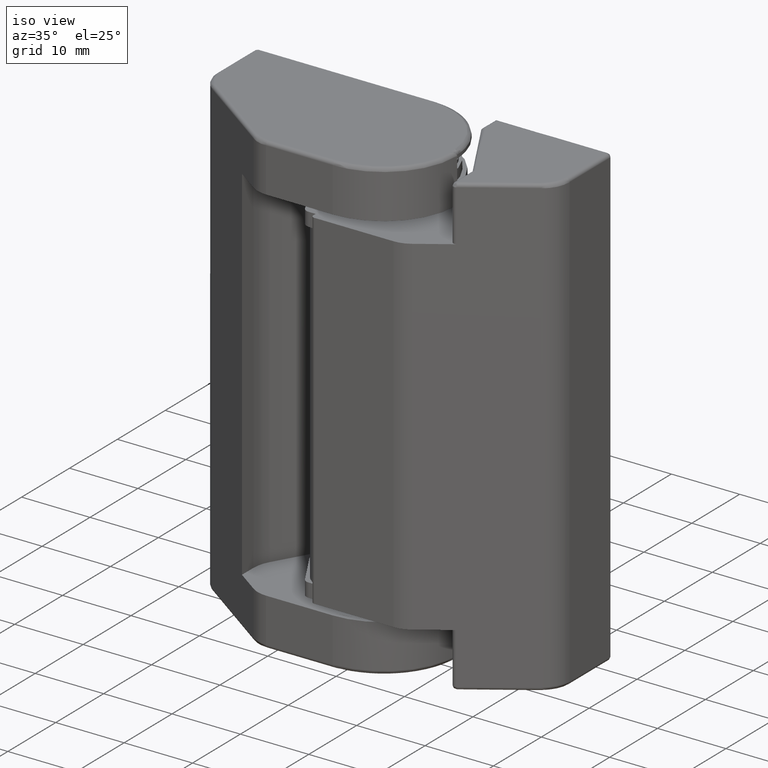
[diagram: clean part render]
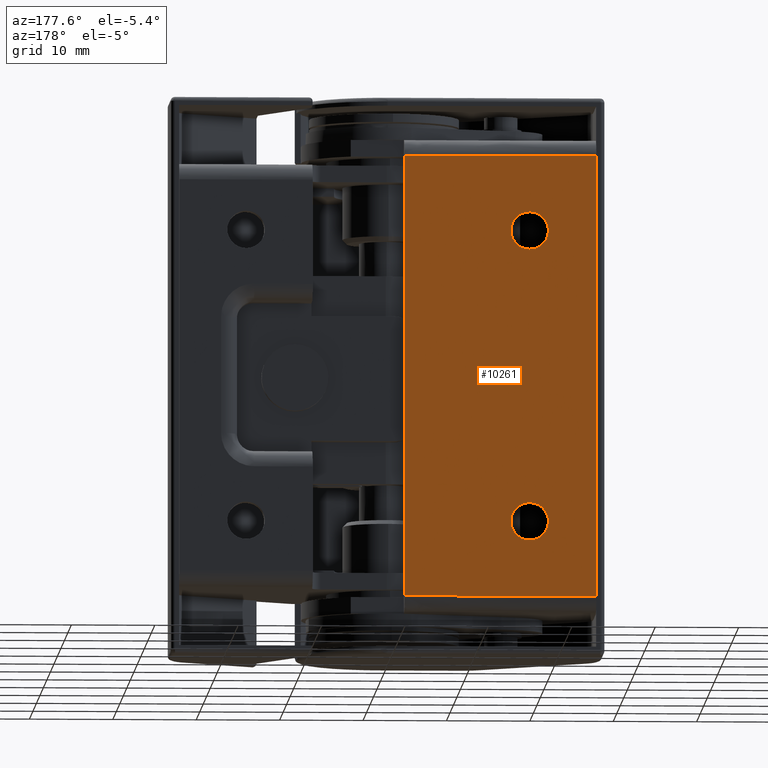
[diagram: tour spotlight — one face highlighted and labeled with its STEP entity id]
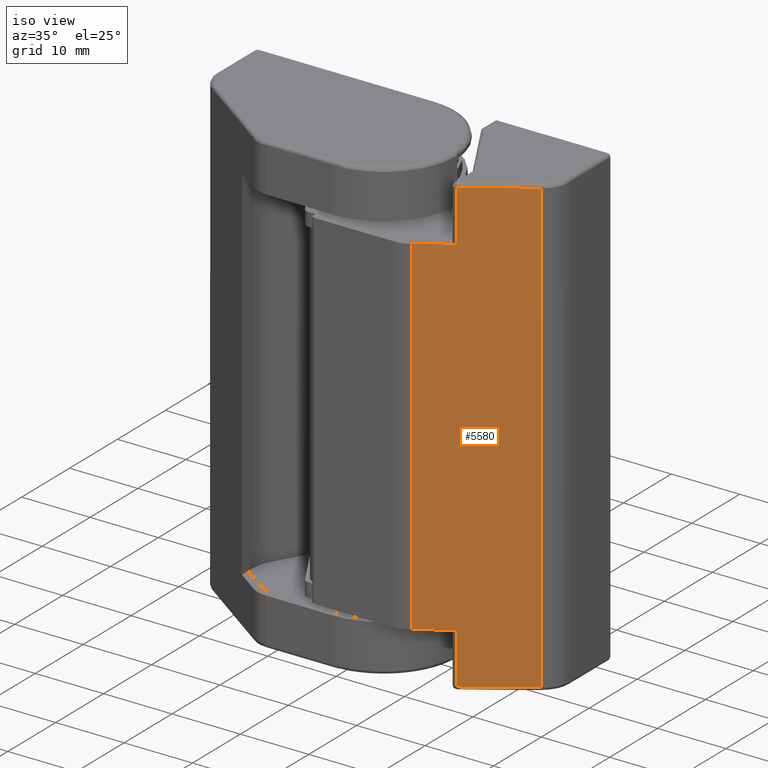
[diagram: tour spotlight — one face highlighted and labeled with its STEP entity id]
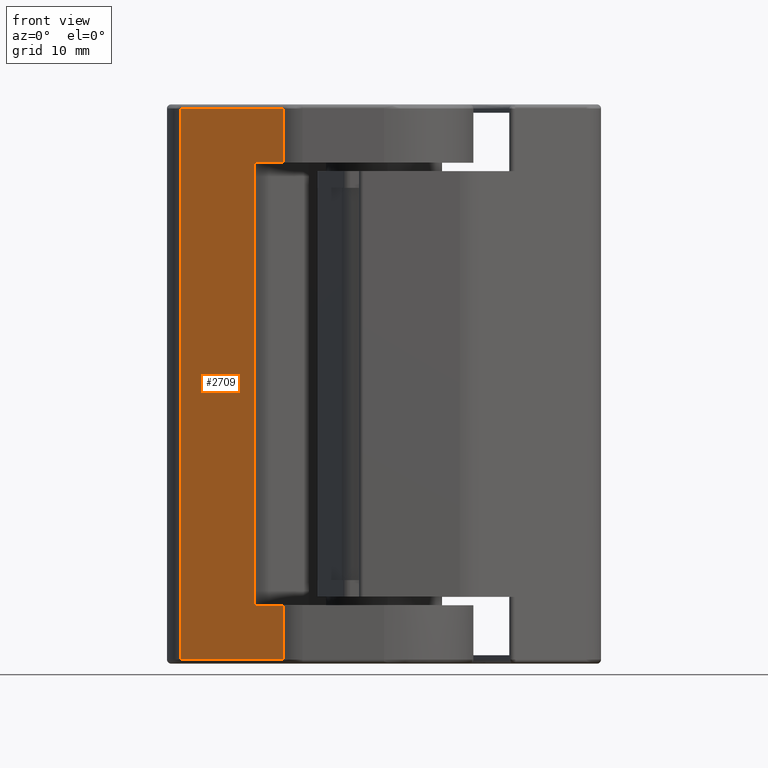
[diagram: tour spotlight — one face highlighted and labeled with its STEP entity id]
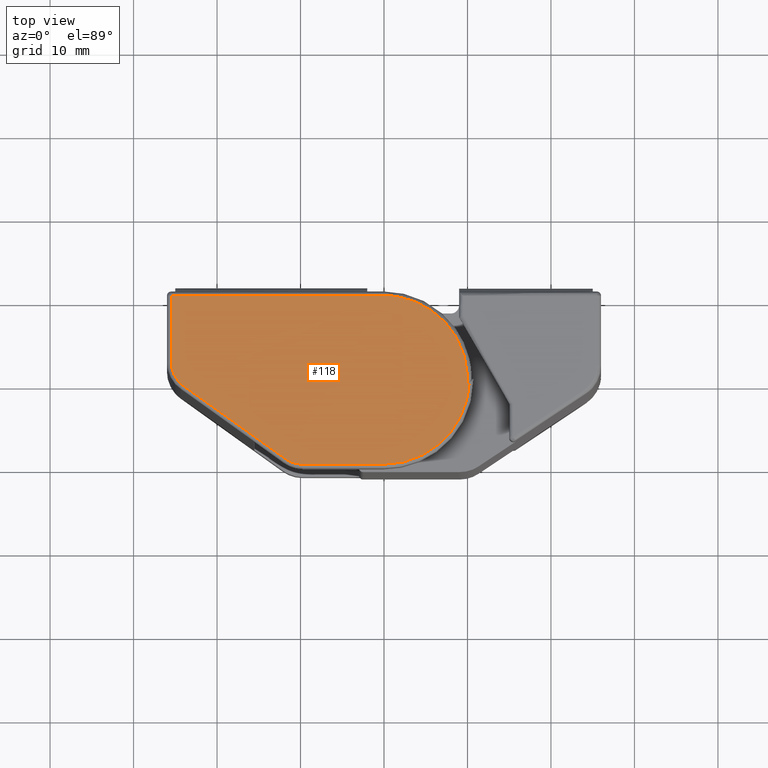
[diagram: tour spotlight — one face highlighted and labeled with its STEP entity id]
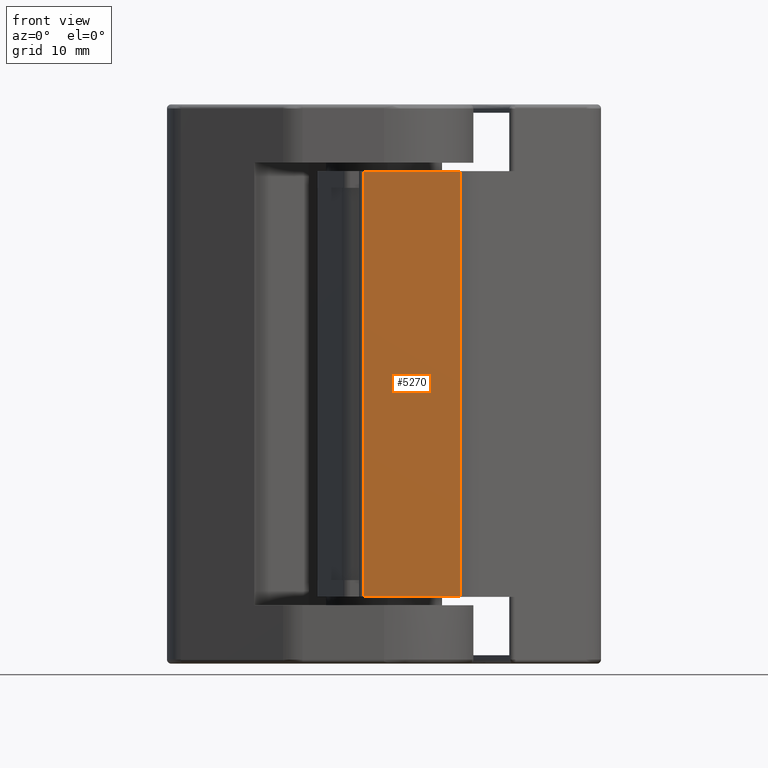
[diagram: tour spotlight — one face highlighted and labeled with its STEP entity id]
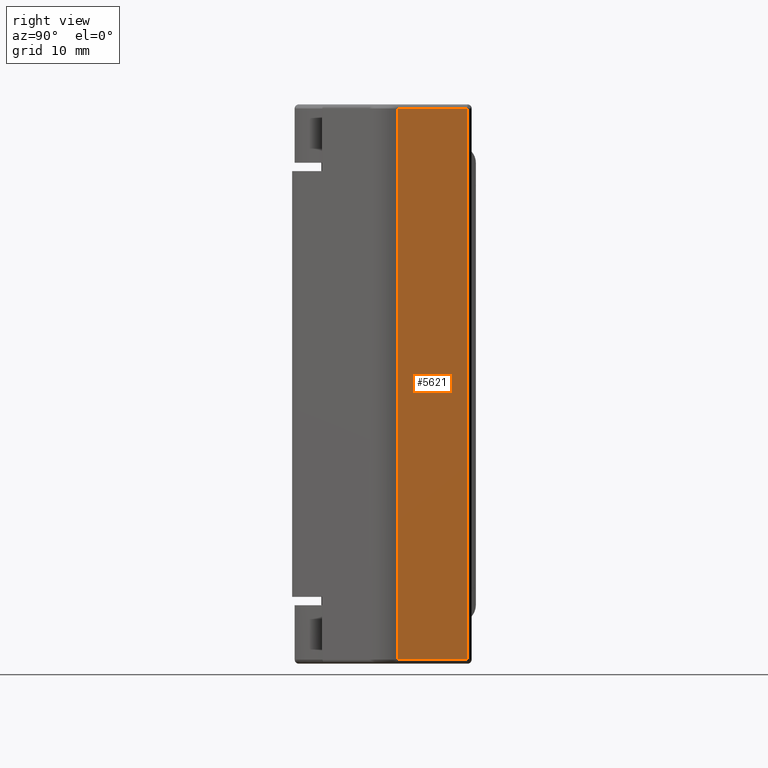
[diagram: tour spotlight — one face highlighted and labeled with its STEP entity id]
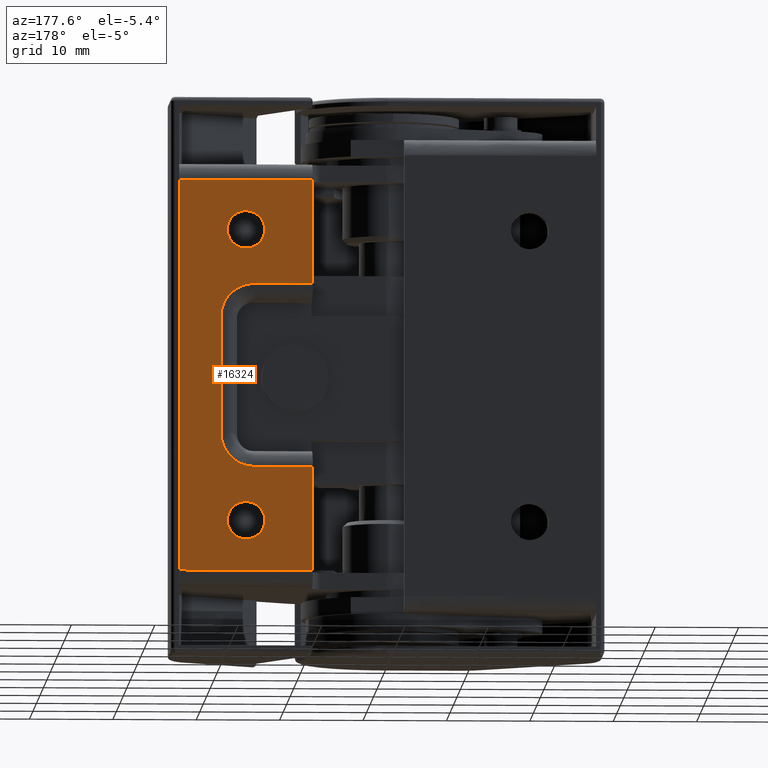
[diagram: tour spotlight — one face highlighted and labeled with its STEP entity id]
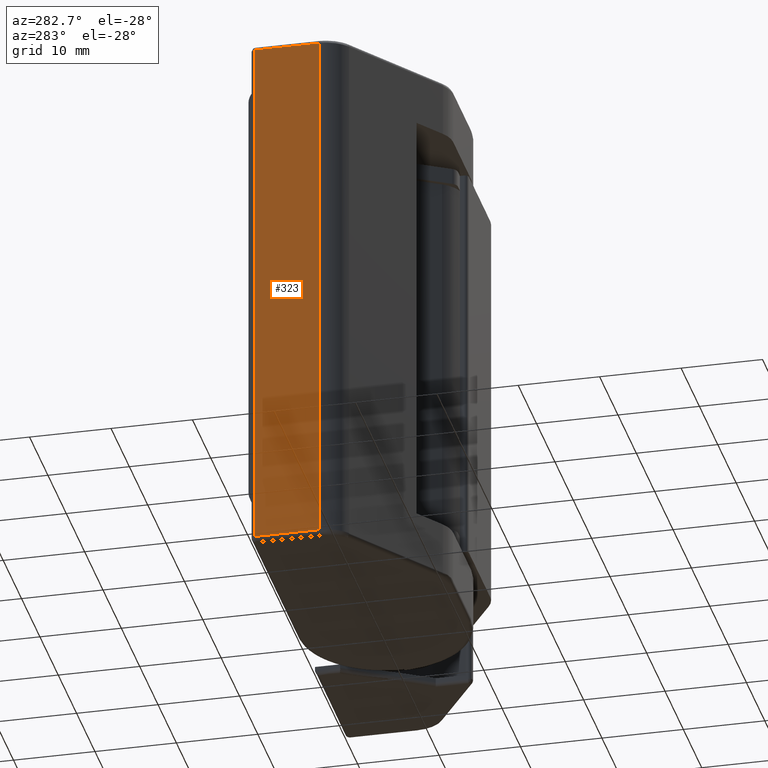
[diagram: tour spotlight — one face highlighted and labeled with its STEP entity id]
A machine part: a face-by-face anatomy tour. The part has 334 B-rep faces; the first image is the clean iso view, then the 8 largest visible faces are spotlighted one at a time (largest first), each with its STEP entity span.

Face 1 — auxiliary view, entity #10261. In plain terms, the highlighted face is a freeform B-spline surface patch.
Definition (entity closure, byte-faithful):
#7795=CARTESIAN_POINT('',(-18.490893221415600,10.999999999998350,52.685152041309820));
#7796=VERTEX_POINT('',#7795);
#7797=CARTESIAN_POINT('',(-17.0,10.999999999998460,48.749999999999993));
#7798=VERTEX_POINT('',#7797);
#7799=CARTESIAN_POINT('',(-18.490893221415600,10.999999999998352,52.685152041309820));
#7800=CARTESIAN_POINT('',(-19.249999999999140,10.999999999998360,52.013552611242424));
#7801=CARTESIAN_POINT('',(-19.249999999999350,10.999999999998391,50.999999999999268));
#7802=CARTESIAN_POINT('',(-19.249999999999819,10.999999999998439,48.749999999999787));
#7803=CARTESIAN_POINT('',(-17.0,10.999999999998460,48.749999999999993));
#7811=(BOUNDED_CURVE()B_SPLINE_CURVE(2,(#7799,#7800,#7801,#7802,#7803),.UNSPECIFIED.,.F.,.U.)B_SPLINE_CURVE_WITH_KNOTS((3,2,3),(0.115779718933797,0.250000000000000,0.500000000000000),.UNSPECIFIED.)CURVE()GEOMETRIC_REPRESENTATION_ITEM()RATIONAL_B_SPLINE_CURVE((0.854350187455677,0.842751159393894,1.0,0.707106781186547,1.0))REPRESENTATION_ITEM(''));
#7812=EDGE_CURVE('',#7796,#7798,#7811,.T.);
#7853=CARTESIAN_POINT('',(-15.509106778584400,10.999999999998350,49.314847958690180));
#7854=VERTEX_POINT('',#7853);
#7860=CARTESIAN_POINT('',(-17.0,10.999999999998460,48.749999999999993));
#7861=CARTESIAN_POINT('',(-16.147552696066118,10.999999999998407,48.750000000000519));
#7862=CARTESIAN_POINT('',(-15.509106778584401,10.999999999998348,49.314847958690173));
#7870=(BOUNDED_CURVE()B_SPLINE_CURVE(2,(#7860,#7861,#7862),.UNSPECIFIED.,.F.,.U.)B_SPLINE_CURVE_WITH_KNOTS((3,3),(0.500000000000000,0.615779718933798),.UNSPECIFIED.)CURVE()GEOMETRIC_REPRESENTATION_ITEM()RATIONAL_B_SPLINE_CURVE((1.0,0.864355621792652,0.854350187455677))REPRESENTATION_ITEM(''));
#7871=EDGE_CURVE('',#7798,#7854,#7870,.T.);
#7894=CARTESIAN_POINT('',(-17.0,10.999999999998460,53.250000000000000));
#7895=VERTEX_POINT('',#7894);
#7896=CARTESIAN_POINT('',(-17.0,10.999999999998460,53.250000000000000));
#7897=CARTESIAN_POINT('',(-17.852447303933879,10.999999999998407,53.249999999999467));
#7898=CARTESIAN_POINT('',(-18.490893221415600,10.999999999998352,52.685152041309820));
#7906=(BOUNDED_CURVE()B_SPLINE_CURVE(2,(#7896,#7897,#7898),.UNSPECIFIED.,.F.,.U.)B_SPLINE_CURVE_WITH_KNOTS((3,3),(0.0,0.115779718933797),.UNSPECIFIED.)CURVE()GEOMETRIC_REPRESENTATION_ITEM()RATIONAL_B_SPLINE_CURVE((1.0,0.864355621792653,0.854350187455677))REPRESENTATION_ITEM(''));
#7907=EDGE_CURVE('',#7895,#7796,#7906,.T.);
#7909=CARTESIAN_POINT('',(-15.509106778584401,10.999999999998348,49.314847958690173));
#7910=CARTESIAN_POINT('',(-14.750000000000858,10.999999999998357,49.986447388757576));
#7911=CARTESIAN_POINT('',(-14.750000000000650,10.999999999998380,51.000000000000732));
#7912=CARTESIAN_POINT('',(-14.750000000000176,10.999999999998439,53.250000000000213));
#7913=CARTESIAN_POINT('',(-17.0,10.999999999998460,53.250000000000000));
#7921=(BOUNDED_CURVE()B_SPLINE_CURVE(2,(#7909,#7910,#7911,#7912,#7913),.UNSPECIFIED.,.F.,.U.)B_SPLINE_CURVE_WITH_KNOTS((3,2,3),(0.615779718933798,0.750000000000000,1.0),.UNSPECIFIED.)CURVE()GEOMETRIC_REPRESENTATION_ITEM()RATIONAL_B_SPLINE_CURVE((0.854350187455677,0.842751159393895,1.0,0.707106781186547,1.0))REPRESENTATION_ITEM(''));
#7922=EDGE_CURVE('',#7854,#7895,#7921,.T.);
#7977=CARTESIAN_POINT('',(-18.490893221415600,10.999999999998350,17.685152041309831));
#7978=VERTEX_POINT('',#7977);
#7979=CARTESIAN_POINT('',(-17.0,10.999999999998460,13.750000000000000));
#7980=VERTEX_POINT('',#7979);
#7981=CARTESIAN_POINT('',(-18.490893221415597,10.999999999998352,17.685152041309831));
#7982=CARTESIAN_POINT('',(-19.249999999999137,10.999999999998362,17.013552611242442));
#7983=CARTESIAN_POINT('',(-19.249999999999361,10.999999999998391,15.999999999999270));
#7984=CARTESIAN_POINT('',(-19.249999999999819,10.999999999998439,13.749999999999797));
#7985=CARTESIAN_POINT('',(-17.0,10.999999999998460,13.750000000000000));
#7993=(BOUNDED_CURVE()B_SPLINE_CURVE(2,(#7981,#7982,#7983,#7984,#7985),.UNSPECIFIED.,.F.,.U.)B_SPLINE_CURVE_WITH_KNOTS((3,2,3),(0.115779718933797,0.250000000000000,0.500000000000000),.UNSPECIFIED.)CURVE()GEOMETRIC_REPRESENTATION_ITEM()RATIONAL_B_SPLINE_CURVE((0.854350187455677,0.842751159393894,1.0,0.707106781186547,1.0))REPRESENTATION_ITEM(''));
#7994=EDGE_CURVE('',#7978,#7980,#7993,.T.);
#8035=CARTESIAN_POINT('',(-15.509106778584400,10.999999999998350,14.314847958690180));
#8036=VERTEX_POINT('',#8035);
#8042=CARTESIAN_POINT('',(-17.0,10.999999999998460,13.750000000000000));
#8043=CARTESIAN_POINT('',(-16.147552696066125,10.999999999998407,13.750000000000528));
#8044=CARTESIAN_POINT('',(-15.509106778584400,10.999999999998352,14.314847958690171));
#8052=(BOUNDED_CURVE()B_SPLINE_CURVE(2,(#8042,#8043,#8044),.UNSPECIFIED.,.F.,.U.)B_SPLINE_CURVE_WITH_KNOTS((3,3),(0.500000000000000,0.615779718933797),.UNSPECIFIED.)CURVE()GEOMETRIC_REPRESENTATION_ITEM()RATIONAL_B_SPLINE_CURVE((1.0,0.864355621792653,0.854350187455677))REPRESENTATION_ITEM(''));
#8053=EDGE_CURVE('',#7980,#8036,#8052,.T.);
#8076=CARTESIAN_POINT('',(-17.0,10.999999999998460,18.250000000000000));
#8077=VERTEX_POINT('',#8076);
#8078=CARTESIAN_POINT('',(-17.0,10.999999999998460,18.250000000000000));
#8079=CARTESIAN_POINT('',(-17.852447303933879,10.999999999998407,18.249999999999471));
#8080=CARTESIAN_POINT('',(-18.490893221415597,10.999999999998352,17.685152041309831));
#8088=(BOUNDED_CURVE()B_SPLINE_CURVE(2,(#8078,#8079,#8080),.UNSPECIFIED.,.F.,.U.)B_SPLINE_CURVE_WITH_KNOTS((3,3),(0.0,0.115779718933797),.UNSPECIFIED.)CURVE()GEOMETRIC_REPRESENTATION_ITEM()RATIONAL_B_SPLINE_CURVE((1.0,0.864355621792654,0.854350187455677))REPRESENTATION_ITEM(''));
#8089=EDGE_CURVE('',#8077,#7978,#8088,.T.);
#8091=CARTESIAN_POINT('',(-15.509106778584400,10.999999999998352,14.314847958690171));
#8092=CARTESIAN_POINT('',(-14.750000000000858,10.999999999998360,14.986447388757560));
#8093=CARTESIAN_POINT('',(-14.750000000000650,10.999999999998391,16.000000000000728));
#8094=CARTESIAN_POINT('',(-14.750000000000176,10.999999999998439,18.250000000000195));
#8095=CARTESIAN_POINT('',(-17.0,10.999999999998460,18.250000000000000));
#8103=(BOUNDED_CURVE()B_SPLINE_CURVE(2,(#8091,#8092,#8093,#8094,#8095),.UNSPECIFIED.,.F.,.U.)B_SPLINE_CURVE_WITH_KNOTS((3,2,3),(0.615779718933797,0.750000000000000,1.0),.UNSPECIFIED.)CURVE()GEOMETRIC_REPRESENTATION_ITEM()RATIONAL_B_SPLINE_CURVE((0.854350187455677,0.842751159393894,1.0,0.707106781186547,1.0))REPRESENTATION_ITEM(''));
#8104=EDGE_CURVE('',#8036,#8077,#8103,.T.);
#9684=CARTESIAN_POINT('',(-25.0,10.999999999998460,60.0));
#9685=VERTEX_POINT('',#9684);
#9701=CARTESIAN_POINT('',(-2.000000000000090,10.999999999998460,60.0));
#9702=VERTEX_POINT('',#9701);
#9716=CARTESIAN_POINT('',(-25.0,10.999999999998460,60.0));
#9717=CARTESIAN_POINT('',(-2.000000000000090,10.999999999998460,60.0));
#9718=QUASI_UNIFORM_CURVE('',1,(#9716,#9717),.UNSPECIFIED.,.F.,.U.);
#9719=EDGE_CURVE('',#9685,#9702,#9718,.T.);
#9738=CARTESIAN_POINT('',(-2.0,10.999999999998460,7.000000000000120));
#9739=VERTEX_POINT('',#9738);
#9755=CARTESIAN_POINT('',(-25.0,10.999999999998460,7.000000000000120));
#9756=VERTEX_POINT('',#9755);
#9781=CARTESIAN_POINT('',(-2.0,10.999999999998460,7.000000000000120));
#9782=CARTESIAN_POINT('',(-25.0,10.999999999998460,7.000000000000120));
#9783=QUASI_UNIFORM_CURVE('',1,(#9781,#9782),.UNSPECIFIED.,.F.,.U.);
#9784=EDGE_CURVE('',#9739,#9756,#9783,.T.);
#10230=CARTESIAN_POINT('',(-26.148849955421539,10.999999999998501,62.647349897275710));
#10231=CARTESIAN_POINT('',(-0.851149427670389,10.999999999998501,62.647349897275710));
#10232=CARTESIAN_POINT('',(-26.148849955421539,10.999999999998501,4.352648681153638));
#10233=CARTESIAN_POINT('',(-0.851149427670389,10.999999999998501,4.352648681153638));
#10234=B_SPLINE_SURFACE_WITH_KNOTS('',1,1,((#10230,#10232),(#10231,#10233)),.UNSPECIFIED.,.F.,.F.,.U.,(2,2),(2,2),(0.0,25.297700527751150),(0.0,58.294701216122071),.UNSPECIFIED.);
#10235=CARTESIAN_POINT('',(-2.000000000000090,10.999999999998460,60.0));
#10236=CARTESIAN_POINT('',(-2.0,10.999999999998460,7.000000000000120));
#10237=QUASI_UNIFORM_CURVE('',1,(#10235,#10236),.UNSPECIFIED.,.F.,.U.);
#10238=EDGE_CURVE('',#9702,#9739,#10237,.T.);
#10239=ORIENTED_EDGE('',*,*,#10238,.T.);
#10240=ORIENTED_EDGE('',*,*,#9784,.T.);
#10241=CARTESIAN_POINT('',(-25.0,10.999999999998460,7.000000000000120));
#10242=CARTESIAN_POINT('',(-25.0,10.999999999998460,60.0));
#10243=QUASI_UNIFORM_CURVE('',1,(#10241,#10242),.UNSPECIFIED.,.F.,.U.);
#10244=EDGE_CURVE('',#9756,#9685,#10243,.T.);
#10245=ORIENTED_EDGE('',*,*,#10244,.T.);
#10246=ORIENTED_EDGE('',*,*,#9719,.T.);
#10247=EDGE_LOOP('',(#10239,#10240,#10245,#10246));
#10248=FACE_OUTER_BOUND('',#10247,.T.);
#10249=ORIENTED_EDGE('',*,*,#8053,.T.);
#10250=ORIENTED_EDGE('',*,*,#8104,.T.);
#10251=ORIENTED_EDGE('',*,*,#8089,.T.);
#10252=ORIENTED_EDGE('',*,*,#7994,.T.);
#10253=EDGE_LOOP('',(#10249,#10250,#10251,#10252));
#10254=FACE_BOUND('',#10253,.T.);
#10255=ORIENTED_EDGE('',*,*,#7871,.T.);
#10256=ORIENTED_EDGE('',*,*,#7922,.T.);
#10257=ORIENTED_EDGE('',*,*,#7907,.T.);
#10258=ORIENTED_EDGE('',*,*,#7812,.T.);
#10259=EDGE_LOOP('',(#10255,#10256,#10257,#10258));
#10260=FACE_BOUND('',#10259,.T.);
#10261=ADVANCED_FACE('',(#10248,#10254,#10260),#10234,.T.);

Face 2 — iso view, entity #5580. In plain terms, the highlighted face is a freeform B-spline surface patch.
Definition (entity closure, byte-faithful):
#3320=CARTESIAN_POINT('',(15.777350098112150,-7.350283693080810,66.500000000000000));
#3321=VERTEX_POINT('',#3320);
#3524=CARTESIAN_POINT('',(15.777350098112150,-7.350283693080810,59.0));
#3525=VERTEX_POINT('',#3524);
#3526=CARTESIAN_POINT('',(15.777350098112150,-7.350283693080810,66.500000000000000));
#3527=CARTESIAN_POINT('',(15.777350098112150,-7.350283693080810,59.0));
#3528=QUASI_UNIFORM_CURVE('',1,(#3526,#3527),.UNSPECIFIED.,.F.,.U.);
#3529=EDGE_CURVE('',#3321,#3525,#3528,.T.);
#3778=CARTESIAN_POINT('',(15.777350098112150,-7.350283693080810,0.499999999999945));
#3779=VERTEX_POINT('',#3778);
#3879=CARTESIAN_POINT('',(24.218800784900051,-1.722649901887410,0.499999999999945));
#3880=VERTEX_POINT('',#3879);
#3894=CARTESIAN_POINT('',(15.777350098112150,-7.350283693080810,0.499999999999945));
#3895=CARTESIAN_POINT('',(24.218800784900051,-1.722649901887410,0.499999999999945));
#3896=QUASI_UNIFORM_CURVE('',1,(#3894,#3895),.UNSPECIFIED.,.F.,.U.);
#3897=EDGE_CURVE('',#3779,#3880,#3896,.T.);
#4130=CARTESIAN_POINT('',(24.218800784900051,-1.722649901887410,66.500000000000000));
#4131=VERTEX_POINT('',#4130);
#4178=CARTESIAN_POINT('',(24.218800784900051,-1.722649901887410,66.500000000000000));
#4179=CARTESIAN_POINT('',(15.777350098112150,-7.350283693080810,66.500000000000000));
#4180=QUASI_UNIFORM_CURVE('',1,(#4178,#4179),.UNSPECIFIED.,.F.,.U.);
#4181=EDGE_CURVE('',#4131,#3321,#4180,.T.);
#5092=CARTESIAN_POINT('',(11.310473871703699,-10.328201177353799,59.0));
#5093=VERTEX_POINT('',#5092);
#5107=CARTESIAN_POINT('',(11.310473871703699,-10.328201177353799,59.0));
#5108=CARTESIAN_POINT('',(15.777350098112150,-7.350283693080810,59.0));
#5109=QUASI_UNIFORM_CURVE('',1,(#5107,#5108),.UNSPECIFIED.,.F.,.U.);
#5110=EDGE_CURVE('',#5093,#3525,#5109,.T.);
#5138=CARTESIAN_POINT('',(15.777350098112150,-7.350283693080810,8.000000000000119));
#5139=VERTEX_POINT('',#5138);
#5152=CARTESIAN_POINT('',(11.310473871703699,-10.328201177353799,8.000000000000119));
#5153=VERTEX_POINT('',#5152);
#5154=CARTESIAN_POINT('',(11.310473871703699,-10.328201177353799,8.000000000000119));
#5155=CARTESIAN_POINT('',(15.777350098112150,-7.350283693080810,8.000000000000119));
#5156=QUASI_UNIFORM_CURVE('',1,(#5154,#5155),.UNSPECIFIED.,.F.,.U.);
#5157=EDGE_CURVE('',#5153,#5139,#5156,.T.);
#5247=CARTESIAN_POINT('',(11.310473871703699,-10.328201177353799,8.000000000000119));
#5248=CARTESIAN_POINT('',(11.310473871703699,-10.328201177353799,59.0));
#5249=QUASI_UNIFORM_CURVE('',1,(#5247,#5248),.UNSPECIFIED.,.F.,.U.);
#5250=EDGE_CURVE('',#5153,#5093,#5249,.T.);
#5552=CARTESIAN_POINT('',(15.777350098112150,-7.350283693080810,8.000000000000119));
#5553=CARTESIAN_POINT('',(15.777350098112150,-7.350283693080810,0.499999999999945));
#5554=QUASI_UNIFORM_CURVE('',1,(#5552,#5553),.UNSPECIFIED.,.F.,.U.);
#5555=EDGE_CURVE('',#5139,#3779,#5554,.T.);
#5561=CARTESIAN_POINT('',(10.665702967408389,-10.758048446884130,-2.796699872079250));
#5562=CARTESIAN_POINT('',(24.863572035423751,-1.292802401538321,-2.796699872079250));
#5563=CARTESIAN_POINT('',(10.665702967408389,-10.758048446884130,69.796701642337126));
#5564=CARTESIAN_POINT('',(24.863572035423751,-1.292802401538321,69.796701642337126));
#5565=B_SPLINE_SURFACE_WITH_KNOTS('',1,1,((#5561,#5563),(#5562,#5564)),.UNSPECIFIED.,.F.,.F.,.U.,(2,2),(2,2),(0.0,17.063714975685730),(0.0,72.593401514416371),.UNSPECIFIED.);
#5566=ORIENTED_EDGE('',*,*,#5555,.T.);
#5567=ORIENTED_EDGE('',*,*,#3897,.T.);
#5568=CARTESIAN_POINT('',(24.218800784900051,-1.722649901887410,66.500000000000000));
#5569=CARTESIAN_POINT('',(24.218800784900051,-1.722649901887410,0.499999999999945));
#5570=QUASI_UNIFORM_CURVE('',1,(#5568,#5569),.UNSPECIFIED.,.F.,.U.);
#5571=EDGE_CURVE('',#4131,#3880,#5570,.T.);
#5572=ORIENTED_EDGE('',*,*,#5571,.F.);
#5573=ORIENTED_EDGE('',*,*,#4181,.T.);
#5574=ORIENTED_EDGE('',*,*,#3529,.T.);
#5575=ORIENTED_EDGE('',*,*,#5110,.F.);
#5576=ORIENTED_EDGE('',*,*,#5250,.F.);
#5577=ORIENTED_EDGE('',*,*,#5157,.T.);
#5578=EDGE_LOOP('',(#5566,#5567,#5572,#5573,#5574,#5575,#5576,#5577));
#5579=FACE_OUTER_BOUND('',#5578,.T.);
#5580=ADVANCED_FACE('',(#5579),#5565,.T.);

Face 3 — front view, entity #2709. In plain terms, the highlighted face is a freeform B-spline surface patch.
Definition (entity closure, byte-faithful):
#338=CARTESIAN_POINT('',(-24.328038923961099,-1.196654415626766,66.500000000000000));
#339=VERTEX_POINT('',#338);
#340=CARTESIAN_POINT('',(-24.328038923961099,-1.196654415626766,0.499999999999945));
#341=VERTEX_POINT('',#340);
#342=CARTESIAN_POINT('',(-24.328038923961099,-1.196654415626766,66.500000000000000));
#343=CARTESIAN_POINT('',(-24.328038923961099,-1.196654415626766,0.499999999999945));
#344=QUASI_UNIFORM_CURVE('',1,(#342,#343),.UNSPECIFIED.,.F.,.U.);
#345=EDGE_CURVE('',#339,#341,#344,.T.);
#806=CARTESIAN_POINT('',(-12.094086648593301,-9.952727281608869,0.499999999999945));
#807=VERTEX_POINT('',#806);
#821=CARTESIAN_POINT('',(-24.328038923961099,-1.196654415626766,0.499999999999945));
#822=CARTESIAN_POINT('',(-12.094086648593301,-9.952727281608869,0.499999999999945));
#823=QUASI_UNIFORM_CURVE('',1,(#821,#822),.UNSPECIFIED.,.F.,.U.);
#824=EDGE_CURVE('',#341,#807,#823,.T.);
#1507=CARTESIAN_POINT('',(-12.094086648593301,-9.952727281608869,66.500000000000000));
#1508=VERTEX_POINT('',#1507);
#1593=CARTESIAN_POINT('',(-12.094086648593301,-9.952727281608869,66.500000000000000));
#1594=CARTESIAN_POINT('',(-24.328038923961099,-1.196654415626766,66.500000000000000));
#1595=QUASI_UNIFORM_CURVE('',1,(#1593,#1594),.UNSPECIFIED.,.F.,.U.);
#1596=EDGE_CURVE('',#1508,#339,#1595,.T.);
#1950=CARTESIAN_POINT('',(-12.094086648593301,-9.952727281608869,60.0));
#1951=VERTEX_POINT('',#1950);
#1952=CARTESIAN_POINT('',(-12.094086648593301,-9.952727281608869,66.500000000000000));
#1953=CARTESIAN_POINT('',(-12.094086648593301,-9.952727281608869,60.0));
#1954=QUASI_UNIFORM_CURVE('',1,(#1952,#1953),.UNSPECIFIED.,.F.,.U.);
#1955=EDGE_CURVE('',#1508,#1951,#1954,.T.);
#1978=CARTESIAN_POINT('',(-15.521028037383299,-7.500000000000000,60.0));
#1979=VERTEX_POINT('',#1978);
#1980=CARTESIAN_POINT('',(-15.521028037383299,-7.500000000000000,60.0));
#1981=CARTESIAN_POINT('',(-12.094086648593301,-9.952727281608869,60.0));
#1982=QUASI_UNIFORM_CURVE('',1,(#1980,#1981),.UNSPECIFIED.,.F.,.U.);
#1983=EDGE_CURVE('',#1979,#1951,#1982,.T.);
#2517=CARTESIAN_POINT('',(-15.521028037383299,-7.500000000000000,7.0));
#2518=VERTEX_POINT('',#2517);
#2524=CARTESIAN_POINT('',(-12.094086648593301,-9.952727281608869,7.0));
#2525=VERTEX_POINT('',#2524);
#2526=CARTESIAN_POINT('',(-15.521028037383299,-7.500000000000000,7.0));
#2527=CARTESIAN_POINT('',(-12.094086648593301,-9.952727281608869,7.0));
#2528=QUASI_UNIFORM_CURVE('',1,(#2526,#2527),.UNSPECIFIED.,.F.,.U.);
#2529=EDGE_CURVE('',#2518,#2525,#2528,.T.);
#2679=CARTESIAN_POINT('',(-12.094086648593301,-9.952727281608869,0.499999999999945));
#2680=CARTESIAN_POINT('',(-12.094086648593301,-9.952727281608869,7.0));
#2681=QUASI_UNIFORM_CURVE('',1,(#2679,#2680),.UNSPECIFIED.,.F.,.U.);
#2682=EDGE_CURVE('',#807,#2525,#2681,.T.);
#2690=CARTESIAN_POINT('',(-11.483000756150449,-10.390093104293710,-2.796699872079250));
#2691=CARTESIAN_POINT('',(-24.939125144544128,-0.759288358085751,-2.796699872079250));
#2692=CARTESIAN_POINT('',(-11.483000756150449,-10.390093104293710,69.796701642337126));
#2693=CARTESIAN_POINT('',(-24.939125144544128,-0.759288358085751,69.796701642337126));
#2694=B_SPLINE_SURFACE_WITH_KNOTS('',1,1,((#2690,#2692),(#2691,#2693)),.UNSPECIFIED.,.F.,.F.,.U.,(2,2),(2,2),(0.0,16.547497805272702),(0.0,72.593401514416371),.UNSPECIFIED.);
#2695=ORIENTED_EDGE('',*,*,#1955,.F.);
#2696=ORIENTED_EDGE('',*,*,#1596,.T.);
#2697=ORIENTED_EDGE('',*,*,#345,.T.);
#2698=ORIENTED_EDGE('',*,*,#824,.T.);
#2699=ORIENTED_EDGE('',*,*,#2682,.T.);
#2700=ORIENTED_EDGE('',*,*,#2529,.F.);
#2701=CARTESIAN_POINT('',(-15.521028037383299,-7.500000000000000,60.0));
#2702=CARTESIAN_POINT('',(-15.521028037383299,-7.500000000000000,7.0));
#2703=QUASI_UNIFORM_CURVE('',1,(#2701,#2702),.UNSPECIFIED.,.F.,.U.);
#2704=EDGE_CURVE('',#1979,#2518,#2703,.T.);
#2705=ORIENTED_EDGE('',*,*,#2704,.F.);
#2706=ORIENTED_EDGE('',*,*,#1983,.T.);
#2707=EDGE_LOOP('',(#2695,#2696,#2697,#2698,#2699,#2700,#2705,#2706));
#2708=FACE_OUTER_BOUND('',#2707,.T.);
#2709=ADVANCED_FACE('',(#2708),#2694,.F.);

Face 4 — top view, entity #118. In plain terms, the highlighted face is a freeform B-spline surface patch.
Definition (entity closure, byte-faithful):
#5=CARTESIAN_POINT('',(-27.282602430308259,-11.208989960848481,67.0));
#6=CARTESIAN_POINT('',(11.970341114815490,-11.208989960848481,67.0));
#7=CARTESIAN_POINT('',(-27.282602430308259,11.008990502654701,67.0));
#8=CARTESIAN_POINT('',(11.970341114815490,11.008990502654701,67.0));
#9=B_SPLINE_SURFACE_WITH_KNOTS('',1,1,((#5,#7),(#6,#8)),.UNSPECIFIED.,.F.,.F.,.U.,(2,2),(2,2),(0.0,39.252943545123742),(0.0,22.217980463503189),.UNSPECIFIED.);
#10=CARTESIAN_POINT('',(10.187737727287519,-0.500000000000000,67.0));
#11=VERTEX_POINT('',#10);
#12=CARTESIAN_POINT('',(9.999062611602520,-0.500000000000000,67.0));
#13=VERTEX_POINT('',#12);
#14=CARTESIAN_POINT('',(10.187737727287519,-0.500000000000000,67.0));
#15=CARTESIAN_POINT('',(9.999062611602520,-0.500000000000000,67.0));
#16=QUASI_UNIFORM_CURVE('',1,(#14,#15),.UNSPECIFIED.,.F.,.U.);
#17=EDGE_CURVE('',#11,#13,#16,.T.);
#18=ORIENTED_EDGE('',*,*,#17,.T.);
#19=CARTESIAN_POINT('',(9.988655696858501,0.476190476190136,67.0));
#20=VERTEX_POINT('',#19);
#21=CARTESIAN_POINT('',(9.999062611602520,-0.500000000000000,67.0));
#22=CARTESIAN_POINT('',(9.999367390134626,-0.337279847230966,67.0));
#23=CARTESIAN_POINT('',(9.999672168685420,-0.174559694461733,66.999999999999943));
#24=CARTESIAN_POINT('',(10.000281725749630,0.150880611076336,66.999999999999929));
#25=CARTESIAN_POINT('',(9.996408980411216,0.313556228341467,66.999999999999986));
#26=CARTESIAN_POINT('',(9.988655696858482,0.476190476190135,67.0));
#27=B_SPLINE_CURVE_WITH_KNOTS('',3,(#21,#22,#23,#24,#25,#26),.UNSPECIFIED.,.F.,.U.,(4,2,4),(0.0,0.500000000000000,1.0),.UNSPECIFIED.);
#28=EDGE_CURVE('',#13,#20,#27,.T.);
#29=ORIENTED_EDGE('',*,*,#28,.T.);
#30=CARTESIAN_POINT('',(-1.156156E-013,10.0,67.0));
#31=VERTEX_POINT('',#30);
#32=CARTESIAN_POINT('',(9.988655696858489,0.476190476190135,67.0));
#33=CARTESIAN_POINT('',(9.534625892456136,10.0,67.0));
#34=CARTESIAN_POINT('',(-1.136868E-013,10.0,67.0));
#42=(BOUNDED_CURVE()B_SPLINE_CURVE(2,(#32,#33,#34),.UNSPECIFIED.,.F.,.U.)CURVE()GEOMETRIC_REPRESENTATION_ITEM()QUASI_UNIFORM_CURVE()RATIONAL_B_SPLINE_CURVE((1.0,0.723746864455734,1.0))REPRESENTATION_ITEM(''));
#43=EDGE_CURVE('',#20,#31,#42,.T.);
#44=ORIENTED_EDGE('',*,*,#43,.T.);
#45=CARTESIAN_POINT('',(-25.500000000000000,10.0,67.0));
#46=VERTEX_POINT('',#45);
#47=CARTESIAN_POINT('',(-1.156156E-013,10.0,67.0));
#48=CARTESIAN_POINT('',(-25.500000000000000,10.0,67.0));
#49=QUASI_UNIFORM_CURVE('',1,(#47,#48),.UNSPECIFIED.,.F.,.U.);
#50=EDGE_CURVE('',#31,#46,#49,.T.);
#51=ORIENTED_EDGE('',*,*,#50,.T.);
#52=CARTESIAN_POINT('',(-25.500000000000000,2.056072865982175,67.0));
#53=VERTEX_POINT('',#52);
#54=CARTESIAN_POINT('',(-25.500000000000000,10.0,67.0));
#55=CARTESIAN_POINT('',(-25.500000000000000,2.056072865982175,67.0));
#56=QUASI_UNIFORM_CURVE('',1,(#54,#55),.UNSPECIFIED.,.F.,.U.);
#57=EDGE_CURVE('',#46,#53,#56,.T.);
#58=ORIENTED_EDGE('',*,*,#57,.T.);
#59=CARTESIAN_POINT('',(-24.037034058465998,-0.790063505425601,67.0));
#60=VERTEX_POINT('',#59);
#61=CARTESIAN_POINT('',(-25.500000000000000,2.056072865982175,67.0));
#62=CARTESIAN_POINT('',(-25.500000000000000,0.257009108247803,67.0));
#63=CARTESIAN_POINT('',(-24.037034058465942,-0.790063505425521,67.0));
#71=(BOUNDED_CURVE()B_SPLINE_CURVE(2,(#61,#62,#63),.UNSPECIFIED.,.F.,.U.)CURVE()GEOMETRIC_REPRESENTATION_ITEM()QUASI_UNIFORM_CURVE()RATIONAL_B_SPLINE_CURVE((1.0,0.889384543094344,1.0))REPRESENTATION_ITEM(''));
#72=EDGE_CURVE('',#53,#60,#71,.T.);
#73=ORIENTED_EDGE('',*,*,#72,.T.);
#74=CARTESIAN_POINT('',(-11.803081783098181,-9.546136371407769,67.0));
#75=VERTEX_POINT('',#74);
#76=CARTESIAN_POINT('',(-24.037034058465998,-0.790063505425601,67.0));
#77=CARTESIAN_POINT('',(-11.803081783098181,-9.546136371407769,67.0));
#78=QUASI_UNIFORM_CURVE('',1,(#76,#77),.UNSPECIFIED.,.F.,.U.);
#79=EDGE_CURVE('',#60,#75,#78,.T.);
#80=ORIENTED_EDGE('',*,*,#79,.T.);
#81=CARTESIAN_POINT('',(-9.766047724632299,-10.199999999999999,67.0));
#82=VERTEX_POINT('',#81);
#83=CARTESIAN_POINT('',(-11.803081783098170,-9.546136371407750,67.0));
#84=CARTESIAN_POINT('',(-10.889505965579149,-10.200000000000001,67.0));
#85=CARTESIAN_POINT('',(-9.766047724632299,-10.199999999999999,67.0));
#93=(BOUNDED_CURVE()B_SPLINE_CURVE(2,(#83,#84,#85),.UNSPECIFIED.,.F.,.U.)CURVE()GEOMETRIC_REPRESENTATION_ITEM()QUASI_UNIFORM_CURVE()RATIONAL_B_SPLINE_CURVE((1.0,0.952150676206821,1.0))REPRESENTATION_ITEM(''));
#94=EDGE_CURVE('',#75,#82,#93,.T.);
#95=ORIENTED_EDGE('',*,*,#94,.T.);
#96=CARTESIAN_POINT('',(-1.136868E-013,-10.199999999999999,67.0));
#97=VERTEX_POINT('',#96);
#98=CARTESIAN_POINT('',(-9.766047724632299,-10.199999999999999,67.0));
#99=CARTESIAN_POINT('',(-1.136868E-013,-10.199999999999999,67.0));
#100=QUASI_UNIFORM_CURVE('',1,(#98,#99),.UNSPECIFIED.,.F.,.U.);
#101=EDGE_CURVE('',#82,#97,#100,.T.);
#102=ORIENTED_EDGE('',*,*,#101,.T.);
#103=CARTESIAN_POINT('',(-1.136868E-013,-10.199999999999999,67.0));
#104=CARTESIAN_POINT('',(9.711675216666608,-10.200000000000001,67.0));
#105=CARTESIAN_POINT('',(10.187737727287530,-0.500000000000004,67.0));
#113=(BOUNDED_CURVE()B_SPLINE_CURVE(2,(#103,#104,#105),.UNSPECIFIED.,.F.,.U.)CURVE()GEOMETRIC_REPRESENTATION_ITEM()QUASI_UNIFORM_CURVE()RATIONAL_B_SPLINE_CURVE((1.0,0.724230490880886,1.0))REPRESENTATION_ITEM(''));
#114=EDGE_CURVE('',#97,#11,#113,.T.);
#115=ORIENTED_EDGE('',*,*,#114,.T.);
#116=EDGE_LOOP('',(#18,#29,#44,#51,#58,#73,#80,#95,#102,#115));
#117=FACE_OUTER_BOUND('',#116,.T.);
#118=ADVANCED_FACE('',(#117),#9,.T.);

Face 5 — front view, entity #5270. In plain terms, the highlighted face is a freeform B-spline surface patch.
Definition (entity closure, byte-faithful):
#5070=CARTESIAN_POINT('',(-2.500000000001505,-11.000000000002400,59.0));
#5071=VERTEX_POINT('',#5070);
#5085=CARTESIAN_POINT('',(9.091673086802969,-11.000000000002400,59.0));
#5086=VERTEX_POINT('',#5085);
#5087=CARTESIAN_POINT('',(-2.500000000001505,-11.000000000002400,59.0));
#5088=CARTESIAN_POINT('',(9.091673086802969,-11.000000000002400,59.0));
#5089=QUASI_UNIFORM_CURVE('',1,(#5087,#5088),.UNSPECIFIED.,.F.,.U.);
#5090=EDGE_CURVE('',#5071,#5086,#5089,.T.);
#5159=CARTESIAN_POINT('',(9.091673086802969,-11.000000000002400,8.000000000000119));
#5160=VERTEX_POINT('',#5159);
#5174=CARTESIAN_POINT('',(-2.500000000001505,-11.000000000002400,8.000000000000119));
#5175=VERTEX_POINT('',#5174);
#5176=CARTESIAN_POINT('',(-2.500000000001505,-11.000000000002400,8.000000000000119));
#5177=CARTESIAN_POINT('',(9.091673086802969,-11.000000000002400,8.000000000000119));
#5178=QUASI_UNIFORM_CURVE('',1,(#5176,#5177),.UNSPECIFIED.,.F.,.U.);
#5179=EDGE_CURVE('',#5175,#5160,#5178,.T.);
#5241=CARTESIAN_POINT('',(9.091673086802969,-11.000000000002400,8.000000000000119));
#5242=CARTESIAN_POINT('',(9.091673086802969,-11.000000000002400,59.0));
#5243=QUASI_UNIFORM_CURVE('',1,(#5241,#5242),.UNSPECIFIED.,.F.,.U.);
#5244=EDGE_CURVE('',#5160,#5086,#5243,.T.);
#5255=CARTESIAN_POINT('',(-3.079004048220479,-11.000000000002400,61.547449901152113));
#5256=CARTESIAN_POINT('',(-3.079004048220479,-11.000000000002400,5.452548730921430));
#5257=CARTESIAN_POINT('',(9.670677445934842,-11.000000000002400,61.547449901152113));
#5258=CARTESIAN_POINT('',(9.670677445934842,-11.000000000002400,5.452548730921430));
#5259=B_SPLINE_SURFACE_WITH_KNOTS('',1,1,((#5255,#5257),(#5256,#5258)),.UNSPECIFIED.,.F.,.F.,.U.,(2,2),(2,2),(0.0,56.094901170230678),(0.0,12.749681494155320),.UNSPECIFIED.);
#5260=ORIENTED_EDGE('',*,*,#5090,.F.);
#5261=CARTESIAN_POINT('',(-2.500000000001505,-11.000000000002400,8.000000000000119));
#5262=CARTESIAN_POINT('',(-2.500000000001505,-11.000000000002400,59.0));
#5263=QUASI_UNIFORM_CURVE('',1,(#5261,#5262),.UNSPECIFIED.,.F.,.U.);
#5264=EDGE_CURVE('',#5175,#5071,#5263,.T.);
#5265=ORIENTED_EDGE('',*,*,#5264,.F.);
#5266=ORIENTED_EDGE('',*,*,#5179,.T.);
#5267=ORIENTED_EDGE('',*,*,#5244,.T.);
#5268=EDGE_LOOP('',(#5260,#5265,#5266,#5267));
#5269=FACE_OUTER_BOUND('',#5268,.T.);
#5270=ADVANCED_FACE('',(#5269),#5259,.T.);

Face 6 — right view, entity #5621. In plain terms, the highlighted face is a freeform B-spline surface patch.
Definition (entity closure, byte-faithful):
#3833=CARTESIAN_POINT('',(25.999999999998948,10.0,0.499999999999945));
#3834=VERTEX_POINT('',#3833);
#3918=CARTESIAN_POINT('',(25.999999999999101,1.605551275463995,0.499999999999945));
#3919=VERTEX_POINT('',#3918);
#3935=CARTESIAN_POINT('',(25.999999999999101,1.605551275463995,0.499999999999945));
#3936=CARTESIAN_POINT('',(25.999999999998948,10.0,0.499999999999945));
#3937=QUASI_UNIFORM_CURVE('',1,(#3935,#3936),.UNSPECIFIED.,.F.,.U.);
#3938=EDGE_CURVE('',#3919,#3834,#3937,.T.);
#4042=CARTESIAN_POINT('',(25.999999999998948,10.0,66.500000000000000));
#4043=VERTEX_POINT('',#4042);
#4088=CARTESIAN_POINT('',(25.999999999999101,1.605551275463995,66.500000000000000));
#4089=VERTEX_POINT('',#4088);
#4103=CARTESIAN_POINT('',(25.999999999998948,10.0,66.500000000000000));
#4104=CARTESIAN_POINT('',(25.999999999999101,1.605551275463995,66.500000000000000));
#4105=QUASI_UNIFORM_CURVE('',1,(#4103,#4104),.UNSPECIFIED.,.F.,.U.);
#4106=EDGE_CURVE('',#4043,#4089,#4105,.T.);
#5597=CARTESIAN_POINT('',(25.999999999999101,1.605551275463995,66.500000000000000));
#5598=CARTESIAN_POINT('',(25.999999999999101,1.605551275463995,0.499999999999945));
#5599=QUASI_UNIFORM_CURVE('',1,(#5597,#5598),.UNSPECIFIED.,.F.,.U.);
#5600=EDGE_CURVE('',#4089,#3919,#5599,.T.);
#5606=CARTESIAN_POINT('',(25.999999999999101,1.186248577943493,69.796699872079188));
#5607=CARTESIAN_POINT('',(25.999999999999101,1.186248577943493,-2.796701642337199));
#5608=CARTESIAN_POINT('',(25.999999999999101,10.419302922677160,69.796699872079188));
#5609=CARTESIAN_POINT('',(25.999999999999101,10.419302922677160,-2.796701642337199));
#5610=B_SPLINE_SURFACE_WITH_KNOTS('',1,1,((#5606,#5608),(#5607,#5609)),.UNSPECIFIED.,.F.,.F.,.U.,(2,2),(2,2),(0.0,72.593401514416385),(0.0,9.233054344733670),.UNSPECIFIED.);
#5611=ORIENTED_EDGE('',*,*,#5600,.T.);
#5612=ORIENTED_EDGE('',*,*,#3938,.T.);
#5613=CARTESIAN_POINT('',(25.999999999998948,10.0,66.500000000000000));
#5614=CARTESIAN_POINT('',(25.999999999998948,10.0,0.499999999999945));
#5615=QUASI_UNIFORM_CURVE('',1,(#5613,#5614),.UNSPECIFIED.,.F.,.U.);
#5616=EDGE_CURVE('',#4043,#3834,#5615,.T.);
#5617=ORIENTED_EDGE('',*,*,#5616,.F.);
#5618=ORIENTED_EDGE('',*,*,#4106,.T.);
#5619=EDGE_LOOP('',(#5611,#5612,#5617,#5618));
#5620=FACE_OUTER_BOUND('',#5619,.T.);
#5621=ADVANCED_FACE('',(#5620),#5610,.T.);

Face 7 — auxiliary view, entity #16324. In plain terms, the highlighted face is a freeform B-spline surface patch.
Definition (entity closure, byte-faithful):
#13539=CARTESIAN_POINT('',(19.245803296447111,10.999999999997460,50.862640786012420));
#13540=VERTEX_POINT('',#13539);
#13546=CARTESIAN_POINT('',(17.0,10.999999999997460,48.749999999999993));
#13547=VERTEX_POINT('',#13546);
#13548=CARTESIAN_POINT('',(17.0,10.999999999997460,48.749999999999993));
#13549=CARTESIAN_POINT('',(19.116588650505562,10.999999999997460,48.750000000000000));
#13550=CARTESIAN_POINT('',(19.245803296447107,10.999999999997456,50.862640786012413));
#13558=(BOUNDED_CURVE()B_SPLINE_CURVE(2,(#13548,#13549,#13550),.UNSPECIFIED.,.F.,.U.)B_SPLINE_CURVE_WITH_KNOTS((3,3),(0.500000000000000,0.739332962239344),.UNSPECIFIED.)CURVE()GEOMETRIC_REPRESENTATION_ITEM()RATIONAL_B_SPLINE_CURVE((1.0,0.719603993286240,0.976072041667578))REPRESENTATION_ITEM(''));
#13559=EDGE_CURVE('',#13547,#13540,#13558,.T.);
#13561=CARTESIAN_POINT('',(14.754196703552889,10.999999999997460,51.137359213987573));
#13562=VERTEX_POINT('',#13561);
#13563=CARTESIAN_POINT('',(14.754196703552887,10.999999999997458,51.137359213987558));
#13564=CARTESIAN_POINT('',(14.750000000000000,10.999999999997456,51.068743717438949));
#13565=CARTESIAN_POINT('',(14.750000000000000,10.999999999997460,51.0));
#13566=CARTESIAN_POINT('',(14.750000000000007,10.999999999997460,48.750000000000007));
#13567=CARTESIAN_POINT('',(17.0,10.999999999997460,48.749999999999993));
#13575=(BOUNDED_CURVE()B_SPLINE_CURVE(2,(#13563,#13564,#13565,#13566,#13567),.UNSPECIFIED.,.F.,.U.)B_SPLINE_CURVE_WITH_KNOTS((3,2,3),(0.239332962239346,0.250000000000000,0.500000000000000),.UNSPECIFIED.)CURVE()GEOMETRIC_REPRESENTATION_ITEM()RATIONAL_B_SPLINE_CURVE((0.976072041667581,0.987502787900309,1.0,0.707106781186547,1.0))REPRESENTATION_ITEM(''));
#13576=EDGE_CURVE('',#13562,#13547,#13575,.T.);
#13620=CARTESIAN_POINT('',(17.0,10.999999999997460,53.250000000000000));
#13621=VERTEX_POINT('',#13620);
#13622=CARTESIAN_POINT('',(17.0,10.999999999997460,53.250000000000000));
#13623=CARTESIAN_POINT('',(14.883411349494425,10.999999999997460,53.249999999999993));
#13624=CARTESIAN_POINT('',(14.754196703552891,10.999999999997460,51.137359213987573));
#13632=(BOUNDED_CURVE()B_SPLINE_CURVE(2,(#13622,#13623,#13624),.UNSPECIFIED.,.F.,.U.)B_SPLINE_CURVE_WITH_KNOTS((3,3),(0.0,0.239332962239346),.UNSPECIFIED.)CURVE()GEOMETRIC_REPRESENTATION_ITEM()RATIONAL_B_SPLINE_CURVE((1.0,0.719603993286238,0.976072041667581))REPRESENTATION_ITEM(''));
#13633=EDGE_CURVE('',#13621,#13562,#13632,.T.);
#13635=CARTESIAN_POINT('',(19.245803296447114,10.999999999997460,50.862640786012420));
#13636=CARTESIAN_POINT('',(19.249999999999996,10.999999999997465,50.931256282561058));
#13637=CARTESIAN_POINT('',(19.250000000000000,10.999999999997460,51.0));
#13638=CARTESIAN_POINT('',(19.250000000000000,10.999999999997460,53.249999999999993));
#13639=CARTESIAN_POINT('',(17.0,10.999999999997460,53.250000000000000));
#13647=(BOUNDED_CURVE()B_SPLINE_CURVE(2,(#13635,#13636,#13637,#13638,#13639),.UNSPECIFIED.,.F.,.U.)B_SPLINE_CURVE_WITH_KNOTS((3,2,3),(0.739332962239344,0.750000000000000,1.0),.UNSPECIFIED.)CURVE()GEOMETRIC_REPRESENTATION_ITEM()RATIONAL_B_SPLINE_CURVE((0.976072041667578,0.987502787900308,1.0,0.707106781186547,1.0))REPRESENTATION_ITEM(''));
#13648=EDGE_CURVE('',#13540,#13621,#13647,.T.);
#13721=CARTESIAN_POINT('',(19.245803296447111,10.999999999997460,15.862640786012429));
#13722=VERTEX_POINT('',#13721);
#13728=CARTESIAN_POINT('',(17.0,10.999999999997460,13.750000000000000));
#13729=VERTEX_POINT('',#13728);
#13730=CARTESIAN_POINT('',(17.0,10.999999999997460,13.750000000000000));
#13731=CARTESIAN_POINT('',(19.116588650505577,10.999999999997460,13.749999999999998));
#13732=CARTESIAN_POINT('',(19.245803296447114,10.999999999997458,15.862640786012424));
#13740=(BOUNDED_CURVE()B_SPLINE_CURVE(2,(#13730,#13731,#13732),.UNSPECIFIED.,.F.,.U.)B_SPLINE_CURVE_WITH_KNOTS((3,3),(0.500000000000000,0.739332962239345),.UNSPECIFIED.)CURVE()GEOMETRIC_REPRESENTATION_ITEM()RATIONAL_B_SPLINE_CURVE((1.0,0.719603993286239,0.976072041667579))REPRESENTATION_ITEM(''));
#13741=EDGE_CURVE('',#13729,#13722,#13740,.T.);
#13743=CARTESIAN_POINT('',(14.754196703552889,10.999999999997460,16.137359213987569));
#13744=VERTEX_POINT('',#13743);
#13745=CARTESIAN_POINT('',(14.754196703552887,10.999999999997463,16.137359213987576));
#13746=CARTESIAN_POINT('',(14.749999999999998,10.999999999997463,16.068743717438949));
#13747=CARTESIAN_POINT('',(14.750000000000000,10.999999999997460,16.0));
#13748=CARTESIAN_POINT('',(14.750000000000007,10.999999999997460,13.750000000000000));
#13749=CARTESIAN_POINT('',(17.0,10.999999999997460,13.750000000000000));
#13757=(BOUNDED_CURVE()B_SPLINE_CURVE(2,(#13745,#13746,#13747,#13748,#13749),.UNSPECIFIED.,.F.,.U.)B_SPLINE_CURVE_WITH_KNOTS((3,2,3),(0.239332962239345,0.250000000000000,0.500000000000000),.UNSPECIFIED.)CURVE()GEOMETRIC_REPRESENTATION_ITEM()RATIONAL_B_SPLINE_CURVE((0.976072041667580,0.987502787900309,1.0,0.707106781186547,1.0))REPRESENTATION_ITEM(''));
#13758=EDGE_CURVE('',#13744,#13729,#13757,.T.);
#13802=CARTESIAN_POINT('',(17.0,10.999999999997460,18.250000000000000));
#13803=VERTEX_POINT('',#13802);
#13804=CARTESIAN_POINT('',(17.0,10.999999999997460,18.250000000000000));
#13805=CARTESIAN_POINT('',(14.883411349494423,10.999999999997460,18.249999999999993));
#13806=CARTESIAN_POINT('',(14.754196703552894,10.999999999997458,16.137359213987583));
#13814=(BOUNDED_CURVE()B_SPLINE_CURVE(2,(#13804,#13805,#13806),.UNSPECIFIED.,.F.,.U.)B_SPLINE_CURVE_WITH_KNOTS((3,3),(0.0,0.239332962239345),.UNSPECIFIED.)CURVE()GEOMETRIC_REPRESENTATION_ITEM()RATIONAL_B_SPLINE_CURVE((1.0,0.719603993286239,0.976072041667579))REPRESENTATION_ITEM(''));
#13815=EDGE_CURVE('',#13803,#13744,#13814,.T.);
#13817=CARTESIAN_POINT('',(19.245803296447107,10.999999999997467,15.862640786012431));
#13818=CARTESIAN_POINT('',(19.250000000000004,10.999999999997456,15.931256282561060));
#13819=CARTESIAN_POINT('',(19.250000000000000,10.999999999997460,16.0));
#13820=CARTESIAN_POINT('',(19.250000000000000,10.999999999997460,18.250000000000000));
#13821=CARTESIAN_POINT('',(17.0,10.999999999997460,18.250000000000000));
#13829=(BOUNDED_CURVE()B_SPLINE_CURVE(2,(#13817,#13818,#13819,#13820,#13821),.UNSPECIFIED.,.F.,.U.)B_SPLINE_CURVE_WITH_KNOTS((3,2,3),(0.739332962239345,0.750000000000000,1.0),.UNSPECIFIED.)CURVE()GEOMETRIC_REPRESENTATION_ITEM()RATIONAL_B_SPLINE_CURVE((0.976072041667579,0.987502787900308,1.0,0.707106781186547,1.0))REPRESENTATION_ITEM(''));
#13830=EDGE_CURVE('',#13722,#13803,#13829,.T.);
#14183=CARTESIAN_POINT('',(9.0,10.999999999997460,22.500000000000000));
#14184=VERTEX_POINT('',#14183);
#14198=CARTESIAN_POINT('',(9.0,10.999999999997460,10.0));
#14199=VERTEX_POINT('',#14198);
#14200=CARTESIAN_POINT('',(9.0,10.999999999997460,10.0));
#14201=CARTESIAN_POINT('',(9.0,10.999999999997460,22.500000000000000));
#14202=QUASI_UNIFORM_CURVE('',1,(#14200,#14201),.UNSPECIFIED.,.F.,.U.);
#14203=EDGE_CURVE('',#14199,#14184,#14202,.T.);
#14524=CARTESIAN_POINT('',(16.0,10.999999999997399,44.500000000000000));
#14525=VERTEX_POINT('',#14524);
#14526=CARTESIAN_POINT('',(20.0,10.999999999997399,40.500000000000000));
#14527=VERTEX_POINT('',#14526);
#14528=CARTESIAN_POINT('',(16.0,10.999999999997399,44.500000000000000));
#14529=CARTESIAN_POINT('',(19.999999999999996,10.999999999997401,44.500000000000007));
#14530=CARTESIAN_POINT('',(20.0,10.999999999997399,40.500000000000000));
#14538=(BOUNDED_CURVE()B_SPLINE_CURVE(2,(#14528,#14529,#14530),.UNSPECIFIED.,.F.,.U.)CURVE()GEOMETRIC_REPRESENTATION_ITEM()QUASI_UNIFORM_CURVE()RATIONAL_B_SPLINE_CURVE((1.0,0.707106781186548,1.0))REPRESENTATION_ITEM(''));
#14539=EDGE_CURVE('',#14525,#14527,#14538,.T.);
#14585=CARTESIAN_POINT('',(9.0,10.999999999997460,44.500000000000000));
#14586=VERTEX_POINT('',#14585);
#14602=CARTESIAN_POINT('',(16.0,10.999999999997399,44.500000000000000));
#14603=CARTESIAN_POINT('',(9.0,10.999999999997460,44.500000000000000));
#14604=QUASI_UNIFORM_CURVE('',1,(#14602,#14603),.UNSPECIFIED.,.F.,.U.);
#14605=EDGE_CURVE('',#14525,#14586,#14604,.T.);
#14630=CARTESIAN_POINT('',(20.0,10.999999999997399,26.500000000000000));
#14631=VERTEX_POINT('',#14630);
#14647=CARTESIAN_POINT('',(20.0,10.999999999997399,26.500000000000000));
#14648=CARTESIAN_POINT('',(20.0,10.999999999997399,40.500000000000000));
#14649=QUASI_UNIFORM_CURVE('',1,(#14647,#14648),.UNSPECIFIED.,.F.,.U.);
#14650=EDGE_CURVE('',#14631,#14527,#14649,.T.);
#14672=CARTESIAN_POINT('',(16.0,10.999999999997399,22.500000000000000));
#14673=VERTEX_POINT('',#14672);
#14701=CARTESIAN_POINT('',(20.0,10.999999999997399,26.500000000000000));
#14702=CARTESIAN_POINT('',(19.999999999999996,10.999999999997401,22.500000000000000));
#14703=CARTESIAN_POINT('',(16.0,10.999999999997399,22.500000000000000));
#14711=(BOUNDED_CURVE()B_SPLINE_CURVE(2,(#14701,#14702,#14703),.UNSPECIFIED.,.F.,.U.)CURVE()GEOMETRIC_REPRESENTATION_ITEM()QUASI_UNIFORM_CURVE()RATIONAL_B_SPLINE_CURVE((1.0,0.707106781186548,1.0))REPRESENTATION_ITEM(''));
#14712=EDGE_CURVE('',#14631,#14673,#14711,.T.);
#14734=CARTESIAN_POINT('',(9.0,10.999999999997460,22.500000000000000));
#14735=CARTESIAN_POINT('',(16.0,10.999999999997399,22.500000000000000));
#14736=QUASI_UNIFORM_CURVE('',1,(#14734,#14735),.UNSPECIFIED.,.F.,.U.);
#14737=EDGE_CURVE('',#14184,#14673,#14736,.T.);
#15327=CARTESIAN_POINT('',(25.0,10.999999999997460,10.0));
#15328=VERTEX_POINT('',#15327);
#15348=CARTESIAN_POINT('',(25.0,10.999999999997460,10.0));
#15349=CARTESIAN_POINT('',(9.0,10.999999999997460,10.0));
#15350=QUASI_UNIFORM_CURVE('',1,(#15348,#15349),.UNSPECIFIED.,.F.,.U.);
#15351=EDGE_CURVE('',#15328,#14199,#15350,.T.);
#15370=CARTESIAN_POINT('',(9.0,10.999999999997460,57.0));
#15371=VERTEX_POINT('',#15370);
#15386=CARTESIAN_POINT('',(25.0,10.999999999997460,57.0));
#15387=VERTEX_POINT('',#15386);
#15401=CARTESIAN_POINT('',(9.0,10.999999999997460,57.0));
#15402=CARTESIAN_POINT('',(25.0,10.999999999997460,57.0));
#15403=QUASI_UNIFORM_CURVE('',1,(#15401,#15402),.UNSPECIFIED.,.F.,.U.);
#15404=EDGE_CURVE('',#15371,#15387,#15403,.T.);
#16236=CARTESIAN_POINT('',(25.0,10.999999999997460,57.0));
#16237=CARTESIAN_POINT('',(25.0,10.999999999997460,10.0));
#16238=QUASI_UNIFORM_CURVE('',1,(#16236,#16237),.UNSPECIFIED.,.F.,.U.);
#16239=EDGE_CURVE('',#15387,#15328,#16238,.T.);
#16291=CARTESIAN_POINT('',(8.200800031011102,10.999999999997399,59.347649908904877));
#16292=CARTESIAN_POINT('',(25.799200398142339,10.999999999997399,59.347649908904877));
#16293=CARTESIAN_POINT('',(8.200800031011102,10.999999999997399,7.652348830456887));
#16294=CARTESIAN_POINT('',(25.799200398142339,10.999999999997399,7.652348830456887));
#16295=B_SPLINE_SURFACE_WITH_KNOTS('',1,1,((#16291,#16293),(#16292,#16294)),.UNSPECIFIED.,.F.,.F.,.U.,(2,2),(2,2),(0.0,17.598400367131241),(0.0,51.695301078447997),.UNSPECIFIED.);
#16296=ORIENTED_EDGE('',*,*,#14203,.T.);
#16297=ORIENTED_EDGE('',*,*,#14737,.T.);
#16298=ORIENTED_EDGE('',*,*,#14712,.F.);
#16299=ORIENTED_EDGE('',*,*,#14650,.T.);
#16300=ORIENTED_EDGE('',*,*,#14539,.F.);
#16301=ORIENTED_EDGE('',*,*,#14605,.T.);
#16302=CARTESIAN_POINT('',(9.0,10.999999999997460,44.500000000000000));
#16303=CARTESIAN_POINT('',(9.0,10.999999999997460,57.0));
#16304=QUASI_UNIFORM_CURVE('',1,(#16302,#16303),.UNSPECIFIED.,.F.,.U.);
#16305=EDGE_CURVE('',#14586,#15371,#16304,.T.);
#16306=ORIENTED_EDGE('',*,*,#16305,.T.);
#16307=ORIENTED_EDGE('',*,*,#15404,.T.);
#16308=ORIENTED_EDGE('',*,*,#16239,.T.);
#16309=ORIENTED_EDGE('',*,*,#15351,.T.);
#16310=EDGE_LOOP('',(#16296,#16297,#16298,#16299,#16300,#16301,#16306,#16307,#16308,#16309));
#16311=FACE_OUTER_BOUND('',#16310,.T.);
#16312=ORIENTED_EDGE('',*,*,#13741,.T.);
#16313=ORIENTED_EDGE('',*,*,#13830,.T.);
#16314=ORIENTED_EDGE('',*,*,#13815,.T.);
#16315=ORIENTED_EDGE('',*,*,#13758,.T.);
#16316=EDGE_LOOP('',(#16312,#16313,#16314,#16315));
#16317=FACE_BOUND('',#16316,.T.);
#16318=ORIENTED_EDGE('',*,*,#13559,.T.);
#16319=ORIENTED_EDGE('',*,*,#13648,.T.);
#16320=ORIENTED_EDGE('',*,*,#13633,.T.);
#16321=ORIENTED_EDGE('',*,*,#13576,.T.);
#16322=EDGE_LOOP('',(#16318,#16319,#16320,#16321));
#16323=FACE_BOUND('',#16322,.T.);
#16324=ADVANCED_FACE('',(#16311,#16317,#16323),#16295,.T.);

Face 8 — auxiliary view, entity #323. In plain terms, the highlighted face is a freeform B-spline surface patch.
Definition (entity closure, byte-faithful):
#249=CARTESIAN_POINT('',(-26.0,10.0,66.500000000000000));
#250=VERTEX_POINT('',#249);
#251=CARTESIAN_POINT('',(-26.0,10.0,0.499999999999945));
#252=VERTEX_POINT('',#251);
#253=CARTESIAN_POINT('',(-26.0,10.0,66.500000000000000));
#254=CARTESIAN_POINT('',(-26.0,10.0,0.499999999999945));
#255=QUASI_UNIFORM_CURVE('',1,(#253,#254),.UNSPECIFIED.,.F.,.U.);
#256=EDGE_CURVE('',#250,#252,#255,.T.);
#296=CARTESIAN_POINT('',(-26.0,1.659273721034857,69.796699872079188));
#297=CARTESIAN_POINT('',(-26.0,1.659273721034857,-2.796701642337199));
#298=CARTESIAN_POINT('',(-26.0,10.396799358020051,69.796699872079188));
#299=CARTESIAN_POINT('',(-26.0,10.396799358020051,-2.796701642337199));
#300=B_SPLINE_SURFACE_WITH_KNOTS('',1,1,((#296,#298),(#297,#299)),.UNSPECIFIED.,.F.,.F.,.U.,(2,2),(2,2),(0.0,72.593401514416385),(0.0,8.737525636985188),.UNSPECIFIED.);
#301=CARTESIAN_POINT('',(-26.0,2.056072865982175,66.500000000000000));
#302=VERTEX_POINT('',#301);
#303=CARTESIAN_POINT('',(-26.0,2.056072865982175,0.499999999999945));
#304=VERTEX_POINT('',#303);
#305=CARTESIAN_POINT('',(-26.0,2.056072865982175,66.500000000000000));
#306=CARTESIAN_POINT('',(-26.0,2.056072865982175,0.499999999999945));
#307=QUASI_UNIFORM_CURVE('',1,(#305,#306),.UNSPECIFIED.,.F.,.U.);
#308=EDGE_CURVE('',#302,#304,#307,.T.);
#309=ORIENTED_EDGE('',*,*,#308,.F.);
#310=CARTESIAN_POINT('',(-26.0,2.056072865982175,66.500000000000000));
#311=CARTESIAN_POINT('',(-26.0,10.0,66.500000000000000));
#312=QUASI_UNIFORM_CURVE('',1,(#310,#311),.UNSPECIFIED.,.F.,.U.);
#313=EDGE_CURVE('',#302,#250,#312,.T.);
#314=ORIENTED_EDGE('',*,*,#313,.T.);
#315=ORIENTED_EDGE('',*,*,#256,.T.);
#316=CARTESIAN_POINT('',(-26.0,10.0,0.499999999999945));
#317=CARTESIAN_POINT('',(-26.0,2.056072865982175,0.499999999999945));
#318=QUASI_UNIFORM_CURVE('',1,(#316,#317),.UNSPECIFIED.,.F.,.U.);
#319=EDGE_CURVE('',#252,#304,#318,.T.);
#320=ORIENTED_EDGE('',*,*,#319,.T.);
#321=EDGE_LOOP('',(#309,#314,#315,#320));
#322=FACE_OUTER_BOUND('',#321,.T.);
#323=ADVANCED_FACE('',(#322),#300,.F.);